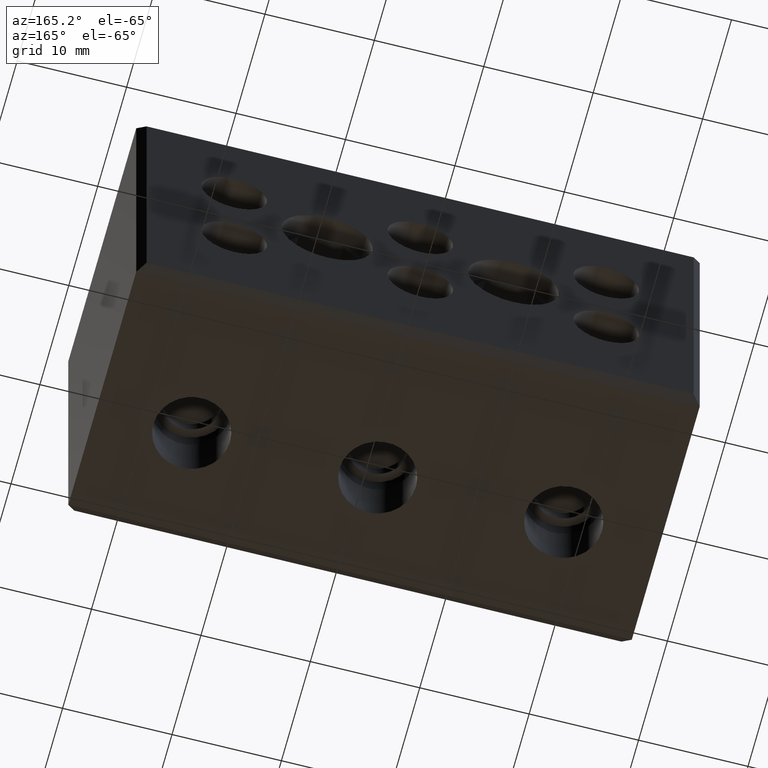
[diagram: clean part render]
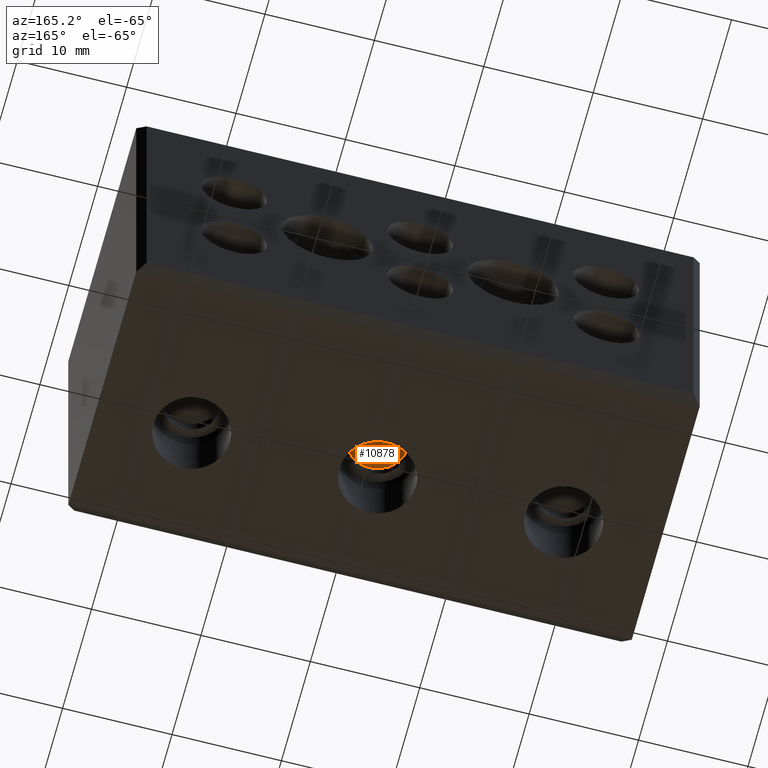
[diagram: same view with one face highlighted and labeled with its STEP entity id]
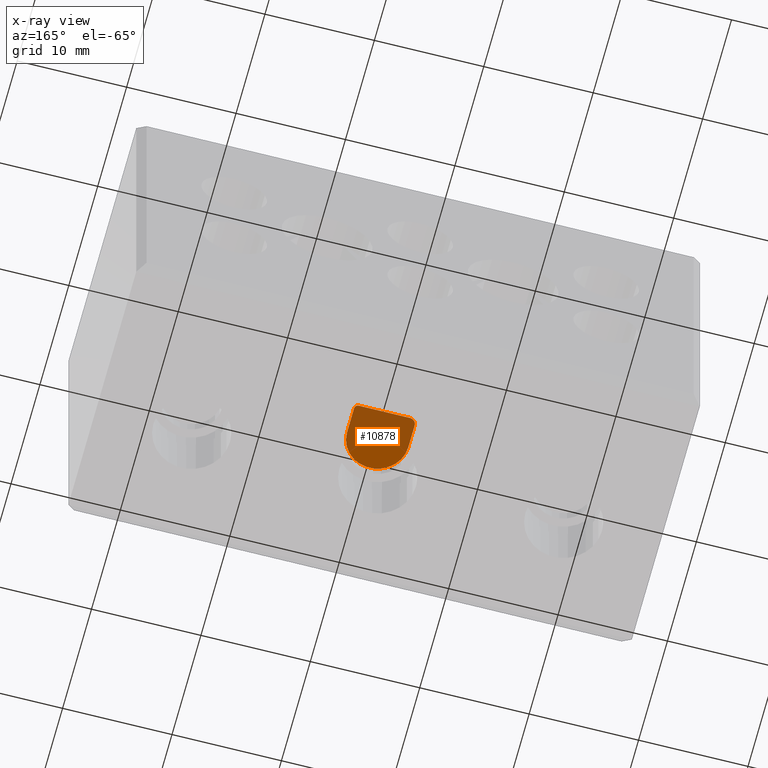
[diagram: x-ray of the same camera — body ghosted, the highlighted face saturated]
A machine part, auxiliary view. The second image highlights one B-rep face of the part: STEP entity #10878.
The next image is the same camera in x-ray: the body ghosted, the highlighted face saturated — about 67% of this face is hidden behind the body in this view.
In plain terms, the highlighted planar face has unit normal (0, -0, -1).
Its self-contained STEP definition (entity closure, byte-faithful):
#926 = VERTEX_POINT ( 'NONE', #7471 ) ;
#930 = VERTEX_POINT ( 'NONE', #7477 ) ;
#942 = VERTEX_POINT ( 'NONE', #7524 ) ;
#996 = VERTEX_POINT ( 'NONE', #7545 ) ;
#1002 = VERTEX_POINT ( 'NONE', #7569 ) ;
#1012 = VERTEX_POINT ( 'NONE', #7558 ) ;
#1300 = FACE_OUTER_BOUND ( 'NONE', #6740, .T. ) ;
#1302 = PLANE ( 'NONE',  #5172 ) ;
#1309 = CARTESIAN_POINT ( 'NONE',  ( 421.3649323037351500, 344.1457525250180000, 7.849999999999961500 ) ) ;
#1311 = DIRECTION ( 'NONE',  ( 0.0000000000000000000, -1.832620528166260800E-016, -1.000000000000000000 ) ) ;
#1312 = DIRECTION ( 'NONE',  ( 0.0000000000000000000, 1.000000000000000000, -1.832620528166260800E-016 ) ) ;
#5172 = AXIS2_PLACEMENT_3D ( 'NONE', #1309, #1311, #1312 ) ;
#6740 = EDGE_LOOP ( 'NONE', ( #7859, #7853, #7864, #7888, #7854, #7848 ) ) ;
#7471 = CARTESIAN_POINT ( 'NONE',  ( 381.5158352908283600, 340.8799454471299600, 7.849999999999961500 ) ) ;
#7477 = CARTESIAN_POINT ( 'NONE',  ( 375.9158352908286200, 338.4299441412572400, 7.849999999999961500 ) ) ;
#7524 = CARTESIAN_POINT ( 'NONE',  ( 376.5158352908286500, 341.2299454471299200, 7.849999999999961500 ) ) ;
#7545 = CARTESIAN_POINT ( 'NONE',  ( 381.5158352908286500, 338.4299445069015600, 7.849999999999963200 ) ) ;
#7558 = CARTESIAN_POINT ( 'NONE',  ( 375.9158352908287400, 340.6299454471300100, 7.849999999999961500 ) ) ;
#7569 = CARTESIAN_POINT ( 'NONE',  ( 381.1658352908284000, 341.2299454471299800, 7.849999999999961500 ) ) ;
#7848 = ORIENTED_EDGE ( 'NONE', *, *, #8758, .T. ) ;
#7853 = ORIENTED_EDGE ( 'NONE', *, *, #8734, .T. ) ;
#7854 = ORIENTED_EDGE ( 'NONE', *, *, #8750, .T. ) ;
#7859 = ORIENTED_EDGE ( 'NONE', *, *, #8844, .T. ) ;
#7864 = ORIENTED_EDGE ( 'NONE', *, *, #8784, .T. ) ;
#7888 = ORIENTED_EDGE ( 'NONE', *, *, #8746, .T. ) ;
#8734 = EDGE_CURVE ( 'NONE', #1002, #926, #12602, .T. ) ;
#8746 = EDGE_CURVE ( 'NONE', #996, #930, #12621, .T. ) ;
#8750 = EDGE_CURVE ( 'NONE', #930, #1012, #11813, .T. ) ;
#8758 = EDGE_CURVE ( 'NONE', #1012, #942, #12603, .T. ) ;
#8784 = EDGE_CURVE ( 'NONE', #926, #996, #11882, .T. ) ;
#8844 = EDGE_CURVE ( 'NONE', #942, #1002, #9041, .T. ) ;
#9041 = LINE ( 'NONE', #9047, #12714 ) ;
#9047 = CARTESIAN_POINT ( 'NONE',  ( 421.3649323037351500, 341.2299454471299800, 7.849999999999961500 ) ) ;
#9056 = DIRECTION ( 'NONE',  ( 1.000000000000000000, 0.0000000000000000000, 0.0000000000000000000 ) ) ;
#10878 = ADVANCED_FACE ( 'NONE', ( #1300 ), #1302, .T. ) ;
#11736 = DIRECTION ( 'NONE',  ( 0.0000000000000000000, -1.832620528166260800E-016, -1.000000000000000000 ) ) ;
#11737 = DIRECTION ( 'NONE',  ( 0.0000000000000000000, 1.000000000000000000, 0.0000000000000000000 ) ) ;
#11768 = CARTESIAN_POINT ( 'NONE',  ( 381.1658352908284000, 340.8799454471299600, 7.849999999999961500 ) ) ;
#11790 = DIRECTION ( 'NONE',  ( 0.0000000000000000000, 1.000000000000000000, 0.0000000000000000000 ) ) ;
#11805 = DIRECTION ( 'NONE',  ( 2.523232649138678200E-014, 1.000000000000000000, -1.832620528166260800E-016 ) ) ;
#11809 = DIRECTION ( 'NONE',  ( 0.0000000000000000000, -1.832620528166260800E-016, -1.000000000000000000 ) ) ;
#11813 = LINE ( 'NONE', #11815, #12629 ) ;
#11814 = CARTESIAN_POINT ( 'NONE',  ( 378.7158352908286400, 338.4299441412572400, 7.849999999999963200 ) ) ;
#11815 = CARTESIAN_POINT ( 'NONE',  ( 375.9158352908288500, 344.1457525250191900, 7.849999999999961500 ) ) ;
#11819 = DIRECTION ( 'NONE',  ( 0.0000000000000000000, 1.000000000000000000, 0.0000000000000000000 ) ) ;
#11822 = CARTESIAN_POINT ( 'NONE',  ( 376.5158352908286500, 340.6299454471300100, 7.849999999999961500 ) ) ;
#11847 = DIRECTION ( 'NONE',  ( 0.0000000000000000000, -1.832620528166260800E-016, -1.000000000000000000 ) ) ;
#11882 = LINE ( 'NONE', #11887, #12684 ) ;
#11887 = CARTESIAN_POINT ( 'NONE',  ( 381.5158352908280200, 344.1457525250135100, 7.849999999999961500 ) ) ;
#11889 = DIRECTION ( 'NONE',  ( 1.132880202610917600E-013, -1.000000000000000000, 1.832620528166260800E-016 ) ) ;
#12587 = AXIS2_PLACEMENT_3D ( 'NONE', #11814, #11809, #11790 ) ;
#12602 = CIRCLE ( 'NONE', #12622, 0.3500000000000169600 ) ;
#12603 = CIRCLE ( 'NONE', #12608, 0.5999999999999339200 ) ;
#12608 = AXIS2_PLACEMENT_3D ( 'NONE', #11822, #11847, #11819 ) ;
#12621 = CIRCLE ( 'NONE', #12587, 2.800000000000024700 ) ;
#12622 = AXIS2_PLACEMENT_3D ( 'NONE', #11768, #11736, #11737 ) ;
#12629 = VECTOR ( 'NONE', #11805, 1000.000000000000000 ) ;
#12684 = VECTOR ( 'NONE', #11889, 1000.000000000000000 ) ;
#12714 = VECTOR ( 'NONE', #9056, 1000.000000000000000 ) ;